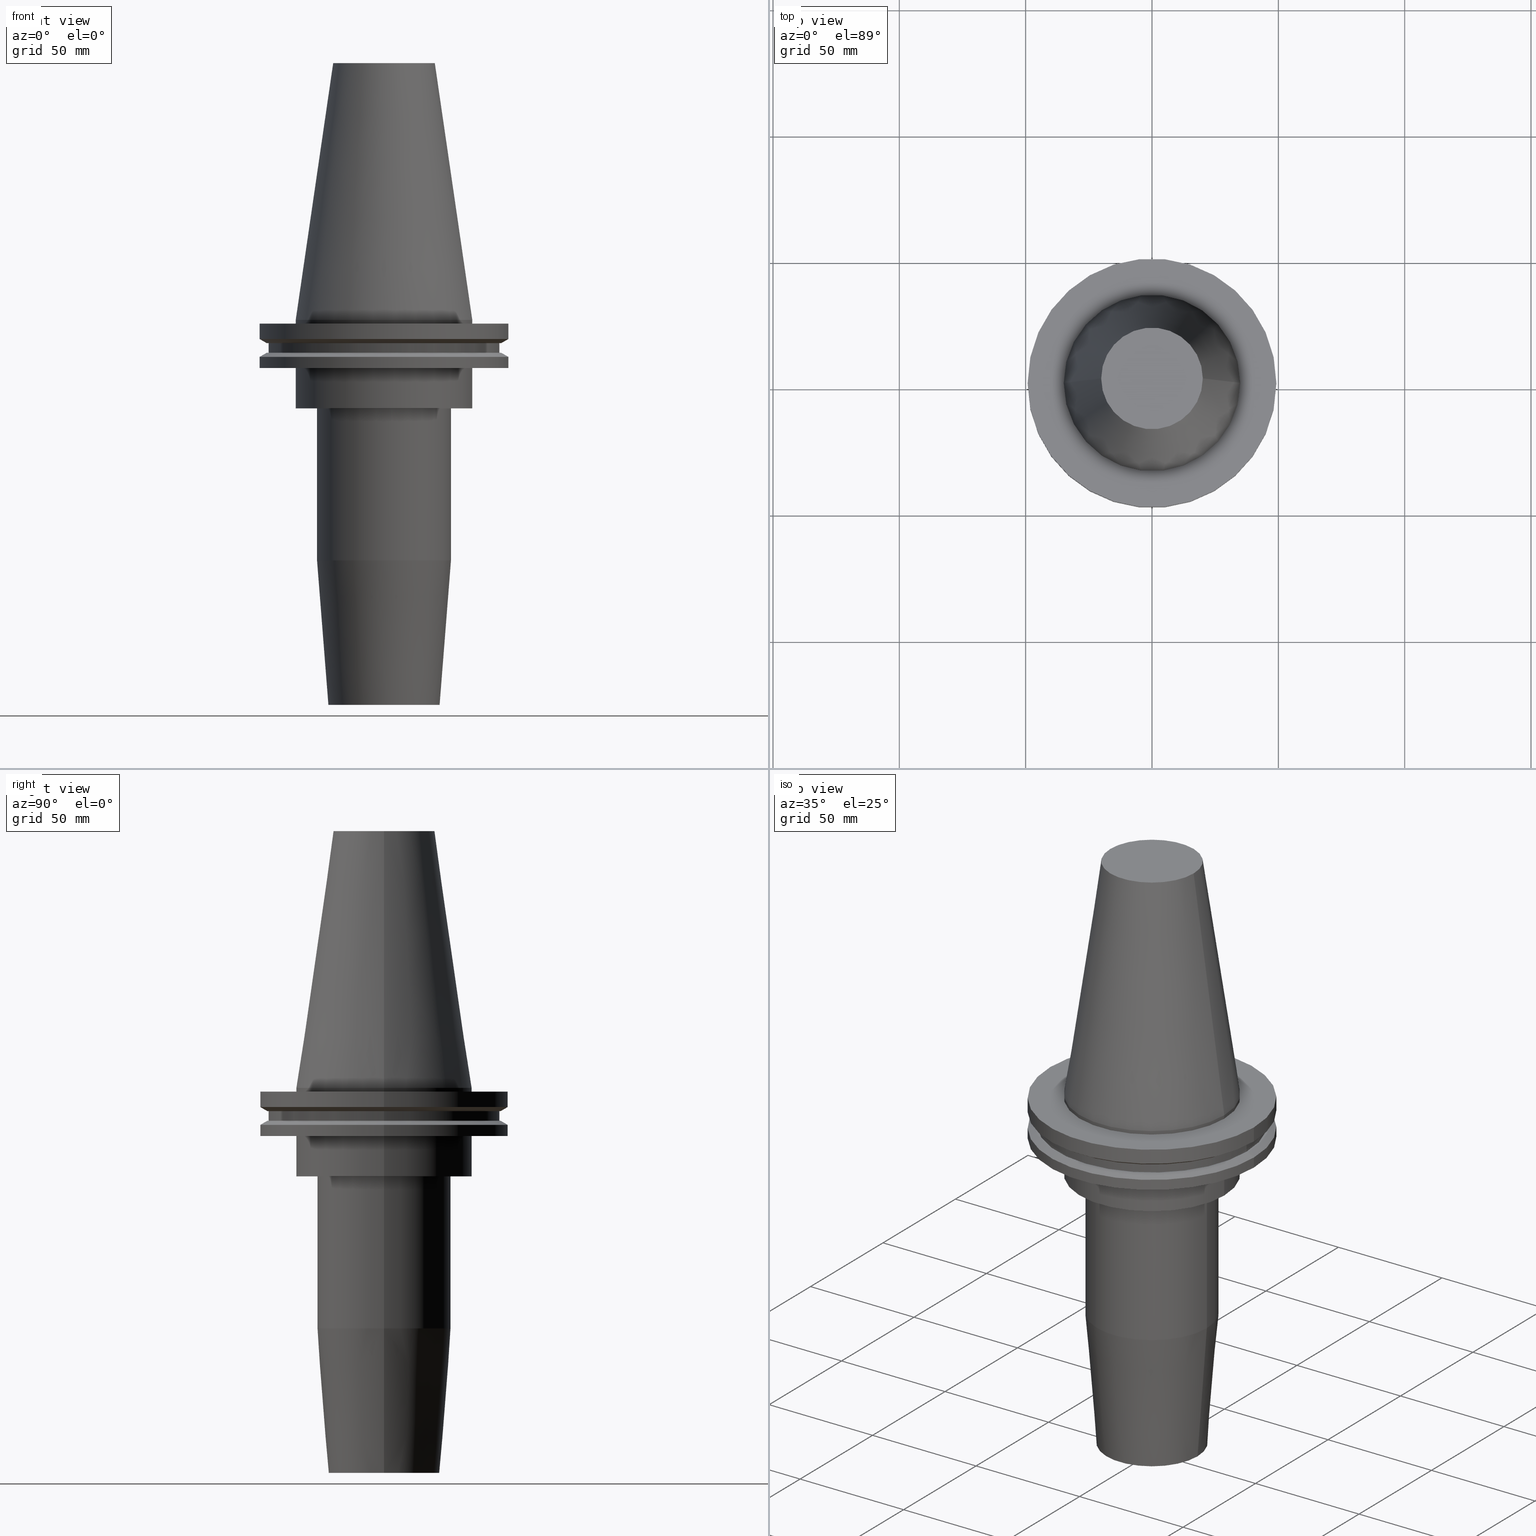
[diagram: canonical four-view strip — front | top / right | iso, engineering-drawing reading convention]
A machine part, canonical four-view strip (front | top / right | iso — engineering-drawing reading convention). The complete STEP part file that produces these views, byte-faithful:
ISO-10303-21;
HEADER;
FILE_DESCRIPTION (( 'STEP AP203' ),
    '1' );
FILE_NAME ('BCV50-SF1_250-6.stp',
    '2022-03-03T17:23:07',
    ( '' ),
    ( '' ),
    'SwSTEP 2.0',
    'SolidWorks 2021',
    '' );
FILE_SCHEMA (( 'CONFIG_CONTROL_DESIGN' ));
ENDSEC;

DATA;
#1 = CARTESIAN_POINT ( 'NONE',  ( 0.000000000000000000, 0.000000000000000000, -14.65761014474876944 ) ) ;
#2 = ADVANCED_FACE ( 'NONE', ( #357 ), #383, .T. ) ;
#3 = ORIENTED_EDGE ( 'NONE', *, *, #600, .T. ) ;
#4 = EDGE_LOOP ( 'NONE', ( #190, #770 ) ) ;
#5 = APPLICATION_PROTOCOL_DEFINITION ( 'international standard', 'config_control_design', 1994, #182 ) ;
#6 = DIRECTION ( 'NONE',  ( 1.000000000000000000, 0.000000000000000000, 0.000000000000000000 ) ) ;
#7 = VERTEX_POINT ( 'NONE', #793 ) ;
#8 = CIRCLE ( 'NONE', #837, 49.21499999999998920 ) ;
#9 = CC_DESIGN_APPROVAL ( #682, ( #635 ) ) ;
#10 = ORIENTED_EDGE ( 'NONE', *, *, #365, .F. ) ;
#11 = ADVANCED_FACE ( 'NONE', ( #680 ), #79, .F. ) ;
#12 = DIRECTION ( 'NONE',  ( -1.000000000000000000, 0.000000000000000000, -0.000000000000000000 ) ) ;
#13 = CARTESIAN_POINT ( 'NONE',  ( 0.000000000000000000, 0.000000000000000000, -35.04999999999999716 ) ) ;
#14 = EDGE_LOOP ( 'NONE', ( #784, #291, #382, #447 ) ) ;
#15 = AXIS2_PLACEMENT_3D ( 'NONE', #203, #52, #330 ) ;
#16 = EDGE_CURVE ( 'NONE', #584, #319, #218, .T. ) ;
#17 = CARTESIAN_POINT ( 'NONE',  ( 26.50000000000000000, 0.000000000000000000, -35.04999999999999716 ) ) ;
#18 = CARTESIAN_POINT ( 'NONE',  ( 0.000000000000000000, 20.10819343178871321, 101.5999999999999943 ) ) ;
#19 = ORIENTED_EDGE ( 'NONE', *, *, #707, .F. ) ;
#20 = DATE_AND_TIME ( #292, #284 ) ;
#21 = CARTESIAN_POINT ( 'NONE',  ( 0.000000000000000000, 0.000000000000000000, -152.4000000000000057 ) ) ;
#22 = ADVANCED_FACE ( 'NONE', ( #156 ), #360, .T. ) ;
#23 = DIRECTION ( 'NONE',  ( -0.000000000000000000, -0.000000000000000000, 1.000000000000000000 ) ) ;
#24 = ORIENTED_EDGE ( 'NONE', *, *, #388, .F. ) ;
#25 = DESIGN_CONTEXT ( 'detailed design', #269, 'design' ) ;
#26 = PRODUCT_DEFINITION_FORMATION_WITH_SPECIFIED_SOURCE ( 'ANY', '', #224, .NOT_KNOWN. ) ;
#27 = SHAPE_DEFINITION_REPRESENTATION ( #614, #720 ) ;
#28 = DIRECTION ( 'NONE',  ( 1.000000000000000000, 0.000000000000000000, 0.000000000000000000 ) ) ;
#29 = EDGE_CURVE ( 'NONE', #667, #341, #209, .T. ) ;
#30 = DIRECTION ( 'NONE',  ( -0.000000000000000000, -0.000000000000000000, 1.000000000000000000 ) ) ;
#31 = ORIENTED_EDGE ( 'NONE', *, *, #220, .T. ) ;
#32 = AXIS2_PLACEMENT_3D ( 'NONE', #167, #434, #374 ) ;
#33 = CIRCLE ( 'NONE', #518, 34.92499999999999005 ) ;
#34 = DATE_AND_TIME ( #688, #839 ) ;
#35 = CARTESIAN_POINT ( 'NONE',  ( 0.000000000000000000, 46.43919780457007818, -9.204999999999998295 ) ) ;
#36 = DIRECTION ( 'NONE',  ( -0.000000000000000000, -0.000000000000000000, 1.000000000000000000 ) ) ;
#37 = EDGE_CURVE ( 'NONE', #456, #507, #342, .T. ) ;
#38 = PERSON_AND_ORGANIZATION ( #185, #534 ) ;
#39 = CARTESIAN_POINT ( 'NONE',  ( 0.000000000000000000, 0.000000000000000000, -35.04999999999999716 ) ) ;
#40 = DIRECTION ( 'NONE',  ( -0.000000000000000000, -0.000000000000000000, 1.000000000000000000 ) ) ;
#41 = ORIENTED_EDGE ( 'NONE', *, *, #565, .F. ) ;
#42 = CONICAL_SURFACE ( 'NONE', #662, 22.00000000000000000, 0.07853981633973751431 ) ;
#43 = DIRECTION ( 'NONE',  ( 0.000000000000000000, -0.000000000000000000, 1.000000000000000000 ) ) ;
#44 = LINE ( 'NONE', #563, #250 ) ;
#45 = APPROVAL_PERSON_ORGANIZATION ( #561, #583, #180 ) ;
#46 = VECTOR ( 'NONE', #470, 1000.000000000000000 ) ;
#47 = DIRECTION ( 'NONE',  ( -0.000000000000000000, -0.000000000000000000, 1.000000000000000000 ) ) ;
#48 = CARTESIAN_POINT ( 'NONE',  ( -45.64500000000000313, 5.589900314708094957E-15, 101.5999999999999943 ) ) ;
#49 = ORIENTED_EDGE ( 'NONE', *, *, #99, .F. ) ;
#50 = CYLINDRICAL_SURFACE ( 'NONE', #812, 15.87500000000002132 ) ;
#51 = ADVANCED_FACE ( 'NONE', ( #675, #141 ), #83, .F. ) ;
#52 = DIRECTION ( 'NONE',  ( 0.000000000000000000, -0.000000000000000000, 1.000000000000000000 ) ) ;
#53 = ORIENTED_EDGE ( 'NONE', *, *, #151, .T. ) ;
#54 = AXIS2_PLACEMENT_3D ( 'NONE', #813, #175, #567 ) ;
#55 = PLANE ( 'NONE',  #192 ) ;
#56 = AXIS2_PLACEMENT_3D ( 'NONE', #673, #742, #343 ) ;
#57 = ORIENTED_EDGE ( 'NONE', *, *, #703, .F. ) ;
#58 = DIRECTION ( 'NONE',  ( 0.8660254037844169472, 1.060575238724880168E-16, -0.5000000000000375255 ) ) ;
#59 = AXIS2_PLACEMENT_3D ( 'NONE', #18, #737, #483 ) ;
#60 = AXIS2_PLACEMENT_3D ( 'NONE', #660, #275, #542 ) ;
#61 = ORIENTED_EDGE ( 'NONE', *, *, #183, .F. ) ;
#62 = ADVANCED_FACE ( 'NONE', ( #666 ), #610, .T. ) ;
#63 = CARTESIAN_POINT ( 'NONE',  ( -34.92499999999999005, 4.277078946022130098E-15, -1.499999999999987566 ) ) ;
#64 = ORIENTED_EDGE ( 'NONE', *, *, #78, .T. ) ;
#65 = FACE_BOUND ( 'NONE', #778, .T. ) ;
#66 = CARTESIAN_POINT ( 'NONE',  ( -49.21499999999998920, 0.000000000000000000, -14.65761014474876944 ) ) ;
#67 = CIRCLE ( 'NONE', #443, 20.10819343178871321 ) ;
#68 = ORIENTED_EDGE ( 'NONE', *, *, #29, .T. ) ;
#69 = LINE ( 'NONE', #608, #718 ) ;
#70 = EDGE_CURVE ( 'NONE', #249, #702, #345, .T. ) ;
#71 = DIRECTION ( 'NONE',  ( 1.000000000000000000, 0.000000000000000000, 0.000000000000000000 ) ) ;
#72 = AXIS2_PLACEMENT_3D ( 'NONE', #706, #560, #488 ) ;
#73 = VECTOR ( 'NONE', #854, 1000.000000000000000 ) ;
#74 = DIRECTION ( 'NONE',  ( 1.000000000000000000, 0.000000000000000000, 0.000000000000000000 ) ) ;
#75 = EDGE_LOOP ( 'NONE', ( #57, #68, #153, #268 ) ) ;
#76 = DIRECTION ( 'NONE',  ( 1.000000000000000000, 0.000000000000000000, 0.000000000000000000 ) ) ;
#77 = FACE_OUTER_BOUND ( 'NONE', #574, .T. ) ;
#78 = EDGE_CURVE ( 'NONE', #554, #286, #797, .T. ) ;
#79 = PLANE ( 'NONE',  #59 ) ;
#80 = ORIENTED_EDGE ( 'NONE', *, *, #301, .T. ) ;
#81 = CARTESIAN_POINT ( 'NONE',  ( 0.000000000000000000, 0.000000000000000000, -13.05499999999999794 ) ) ;
#82 = DIRECTION ( 'NONE',  ( -0.000000000000000000, -0.000000000000000000, 1.000000000000000000 ) ) ;
#83 = PLANE ( 'NONE',  #302 ) ;
#84 = VECTOR ( 'NONE', #127, 1000.000000000000000 ) ;
#85 = CC_DESIGN_PERSON_AND_ORGANIZATION_ASSIGNMENT ( #305, #808, ( #26 ) ) ;
#86 = VERTEX_POINT ( 'NONE', #502 ) ;
#87 = DIRECTION ( 'NONE',  ( -0.8660254037844273833, 1.060575238724893110E-16, 0.5000000000000195399 ) ) ;
#88 = CYLINDRICAL_SURFACE ( 'NONE', #655, 34.92499999999999716 ) ;
#89 = DIRECTION ( 'NONE',  ( -0.000000000000000000, -0.000000000000000000, 1.000000000000000000 ) ) ;
#90 = AXIS2_PLACEMENT_3D ( 'NONE', #184, #772, #439 ) ;
#91 = EDGE_LOOP ( 'NONE', ( #232, #80 ) ) ;
#92 = EDGE_CURVE ( 'NONE', #249, #615, #586, .T. ) ;
#93 = EDGE_CURVE ( 'NONE', #740, #554, #119, .T. ) ;
#94 = PERSON_AND_ORGANIZATION_ROLE ( 'creator' ) ;
#95 = DIRECTION ( 'NONE',  ( -0.000000000000000000, -0.000000000000000000, 1.000000000000000000 ) ) ;
#96 = ORIENTED_EDGE ( 'NONE', *, *, #656, .F. ) ;
#97 = ORIENTED_EDGE ( 'NONE', *, *, #365, .T. ) ;
#98 = PERSON_AND_ORGANIZATION ( #185, #534 ) ;
#99 = EDGE_CURVE ( 'NONE', #319, #264, #516, .T. ) ;
#100 = FACE_OUTER_BOUND ( 'NONE', #261, .T. ) ;
#101 = CARTESIAN_POINT ( 'NONE',  ( 0.000000000000000000, 0.000000000000000000, -13.05499999999999794 ) ) ;
#102 = VERTEX_POINT ( 'NONE', #307 ) ;
#103 = PLANE ( 'NONE',  #533 ) ;
#104 = CYLINDRICAL_SURFACE ( 'NONE', #597, 45.64500000000000313 ) ;
#105 = CLOSED_SHELL ( 'NONE', ( #814, #449, #664, #62, #265, #363, #143, #2, #22, #338, #717, #693, #11, #109, #759, #576, #809, #256, #816, #120, #598, #630, #532, #729, #274, #399, #353, #51, #665, #253 ) ) ;
#106 = AXIS2_PLACEMENT_3D ( 'NONE', #452, #836, #581 ) ;
#107 = CARTESIAN_POINT ( 'NONE',  ( 0.000000000000000000, 0.000000000000000000, -101.4000000000000199 ) ) ;
#108 = CARTESIAN_POINT ( 'NONE',  ( 0.000000000000000000, 0.000000000000000000, -19.04999999999999716 ) ) ;
#109 = ADVANCED_FACE ( 'NONE', ( #828, #701 ), #496, .F. ) ;
#110 = ORIENTED_EDGE ( 'NONE', *, *, #409, .F. ) ;
#111 = FACE_BOUND ( 'NONE', #512, .T. ) ;
#112 = CARTESIAN_POINT ( 'NONE',  ( 49.21499999999998920, 0.000000000000000000, 101.5999999999999943 ) ) ;
#113 = ORIENTED_EDGE ( 'NONE', *, *, #70, .F. ) ;
#114 = AXIS2_PLACEMENT_3D ( 'NONE', #704, #715, #847 ) ;
#115 = DIRECTION ( 'NONE',  ( 1.000000000000000000, 0.000000000000000000, 0.000000000000000000 ) ) ;
#116 = LINE ( 'NONE', #112, #179 ) ;
#117 = EDGE_CURVE ( 'NONE', #672, #507, #116, .T. ) ;
#118 = AXIS2_PLACEMENT_3D ( 'NONE', #188, #234, #442 ) ;
#119 = CIRCLE ( 'NONE', #433, 20.10819343178871321 ) ;
#120 = ADVANCED_FACE ( 'NONE', ( #378 ), #823, .T. ) ;
#121 = FACE_OUTER_BOUND ( 'NONE', #504, .T. ) ;
#122 = CARTESIAN_POINT ( 'NONE',  ( 0.000000000000000000, 0.000000000000000000, -1.499999999999987566 ) ) ;
#123 = EDGE_LOOP ( 'NONE', ( #570, #61 ) ) ;
#124 = CARTESIAN_POINT ( 'NONE',  ( 49.21500000000000341, 0.000000000000000000, -7.602389855251287187 ) ) ;
#125 = ORIENTED_EDGE ( 'NONE', *, *, #16, .F. ) ;
#126 = AXIS2_PLACEMENT_3D ( 'NONE', #695, #95, #247 ) ;
#127 = DIRECTION ( 'NONE',  ( -0.000000000000000000, -0.000000000000000000, 1.000000000000000000 ) ) ;
#128 = SECURITY_CLASSIFICATION ( '', '', #174 ) ;
#129 = CARTESIAN_POINT ( 'NONE',  ( 15.87500000000003197, 0.000000000000000000, -101.4000000000000199 ) ) ;
#130 = ORIENTED_EDGE ( 'NONE', *, *, #622, .T. ) ;
#131 = CARTESIAN_POINT ( 'NONE',  ( 0.000000000000000000, 0.000000000000000000, 0.000000000000000000 ) ) ;
#132 = FACE_OUTER_BOUND ( 'NONE', #676, .T. ) ;
#133 = ORIENTED_EDGE ( 'NONE', *, *, #16, .T. ) ;
#134 = CC_DESIGN_PERSON_AND_ORGANIZATION_ASSIGNMENT ( #416, #358, ( #26 ) ) ;
#135 =( LENGTH_UNIT ( ) NAMED_UNIT ( * ) SI_UNIT ( .MILLI., .METRE. ) );
#136 = DIRECTION ( 'NONE',  ( 1.000000000000000000, 0.000000000000000000, 0.000000000000000000 ) ) ;
#137 = ORIENTED_EDGE ( 'NONE', *, *, #191, .F. ) ;
#138 = CARTESIAN_POINT ( 'NONE',  ( 0.000000000000000000, 0.000000000000000000, 101.5999999999999943 ) ) ;
#139 = AXIS2_PLACEMENT_3D ( 'NONE', #521, #721, #320 ) ;
#140 = APPROVAL_PERSON_ORGANIZATION ( #498, #164, #309 ) ;
#141 = FACE_BOUND ( 'NONE', #254, .T. ) ;
#142 = EDGE_CURVE ( 'NONE', #86, #286, #197, .T. ) ;
#143 = ADVANCED_FACE ( 'NONE', ( #298 ), #104, .T. ) ;
#144 = LINE ( 'NONE', #404, #379 ) ;
#145 = AXIS2_PLACEMENT_3D ( 'NONE', #761, #629, #617 ) ;
#146 = CIRCLE ( 'NONE', #371, 26.50000000000000000 ) ;
#147 = ORIENTED_EDGE ( 'NONE', *, *, #510, .T. ) ;
#148 = ORIENTED_EDGE ( 'NONE', *, *, #546, .F. ) ;
#149 = DIRECTION ( 'NONE',  ( 1.000000000000000000, 0.000000000000000000, 0.000000000000000000 ) ) ;
#150 = FACE_OUTER_BOUND ( 'NONE', #210, .T. ) ;
#151 = EDGE_CURVE ( 'NONE', #335, #456, #44, .T. ) ;
#152 = CARTESIAN_POINT ( 'NONE',  ( 0.000000000000000000, 0.000000000000000000, 101.5999999999999943 ) ) ;
#153 = ORIENTED_EDGE ( 'NONE', *, *, #707, .T. ) ;
#154 = DIRECTION ( 'NONE',  ( -0.000000000000000000, -0.000000000000000000, 1.000000000000000000 ) ) ;
#155 = LINE ( 'NONE', #66, #541 ) ;
#156 = FACE_OUTER_BOUND ( 'NONE', #186, .T. ) ;
#157 = AXIS2_PLACEMENT_3D ( 'NONE', #424, #831, #359 ) ;
#158 = ORIENTED_EDGE ( 'NONE', *, *, #482, .T. ) ;
#159 = APPROVAL_DATE_TIME ( #20, #682 ) ;
#160 = CARTESIAN_POINT ( 'NONE',  ( -26.50000000000000000, 3.245314017740485765E-15, -95.22207868720845170 ) ) ;
#161 = DIRECTION ( 'NONE',  ( 1.000000000000000000, 0.000000000000000000, 0.000000000000000000 ) ) ;
#162 = AXIS2_PLACEMENT_3D ( 'NONE', #1, #466, #349 ) ;
#163 = ORIENTED_EDGE ( 'NONE', *, *, #276, .F. ) ;
#164 = APPROVAL ( #751, 'UNSPECIFIED' ) ;
#165 = DATE_AND_TIME ( #229, #625 ) ;
#166 = DIRECTION ( 'NONE',  ( 1.000000000000000000, 0.000000000000000000, 0.000000000000000000 ) ) ;
#167 = CARTESIAN_POINT ( 'NONE',  ( 0.000000000000000000, 0.000000000000000000, -19.04999999999999716 ) ) ;
#168 = VERTEX_POINT ( 'NONE', #765 ) ;
#169 = DIRECTION ( 'NONE',  ( -0.000000000000000000, -0.000000000000000000, 1.000000000000000000 ) ) ;
#170 = DIRECTION ( 'NONE',  ( -0.000000000000000000, -0.000000000000000000, 1.000000000000000000 ) ) ;
#171 = AXIS2_PLACEMENT_3D ( 'NONE', #39, #169, #364 ) ;
#172 = ORIENTED_EDGE ( 'NONE', *, *, #198, .T. ) ;
#173 = AXIS2_PLACEMENT_3D ( 'NONE', #138, #407, #678 ) ;
#174 = SECURITY_CLASSIFICATION_LEVEL ( 'unclassified' ) ;
#175 = DIRECTION ( 'NONE',  ( -0.000000000000000000, -0.000000000000000000, 1.000000000000000000 ) ) ;
#176 = EDGE_CURVE ( 'NONE', #548, #168, #626, .T. ) ;
#177 = CARTESIAN_POINT ( 'NONE',  ( 0.000000000000000000, 0.000000000000000000, -152.4000000000000057 ) ) ;
#178 = ORIENTED_EDGE ( 'NONE', *, *, #304, .T. ) ;
#179 = VECTOR ( 'NONE', #248, 1000.000000000000000 ) ;
#180 = APPROVAL_ROLE ( '' ) ;
#181 = DIRECTION ( 'NONE',  ( -0.000000000000000000, -0.000000000000000000, 1.000000000000000000 ) ) ;
#182 = APPLICATION_CONTEXT ( 'configuration controlled 3d designs of mechanical parts and assemblies' ) ;
#183 = EDGE_CURVE ( 'NONE', #799, #102, #641, .T. ) ;
#184 = CARTESIAN_POINT ( 'NONE',  ( 0.000000000000000000, 0.000000000000000000, -152.4000000000000057 ) ) ;
#185 = PERSON ( 'UNSPECIFIED', 'UNSPECIFIED', 'UNSPECIFIED', ('UNSPECIFIED'), ('UNSPECIFIED'), ('UNSPECIFIED') ) ;
#186 = EDGE_LOOP ( 'NONE', ( #754, #53, #538, #745 ) ) ;
#187 = CARTESIAN_POINT ( 'NONE',  ( 46.43919780457007818, 5.857130358318725715E-15, -13.05499999999999794 ) ) ;
#188 = CARTESIAN_POINT ( 'NONE',  ( 0.000000000000000000, 0.000000000000000000, -9.204999999999991189 ) ) ;
#189 = EDGE_CURVE ( 'NONE', #264, #319, #273, .T. ) ;
#190 = ORIENTED_EDGE ( 'NONE', *, *, #215, .F. ) ;
#191 = EDGE_CURVE ( 'NONE', #313, #719, #709, .T. ) ;
#192 = AXIS2_PLACEMENT_3D ( 'NONE', #585, #835, #263 ) ;
#193 = VECTOR ( 'NONE', #540, 1000.000000000000000 ) ;
#194 = DIRECTION ( 'NONE',  ( 1.000000000000000000, 0.000000000000000000, 0.000000000000000000 ) ) ;
#195 = FACE_OUTER_BOUND ( 'NONE', #372, .T. ) ;
#196 = ORIENTED_EDGE ( 'NONE', *, *, #99, .T. ) ;
#197 = CIRCLE ( 'NONE', #501, 34.92499999999999005 ) ;
#198 = EDGE_CURVE ( 'NONE', #661, #811, #557, .T. ) ;
#199 = AXIS2_PLACEMENT_3D ( 'NONE', #425, #40, #690 ) ;
#200 = CYLINDRICAL_SURFACE ( 'NONE', #495, 26.50000000000000000 ) ;
#201 = ORIENTED_EDGE ( 'NONE', *, *, #176, .T. ) ;
#202 = CARTESIAN_POINT ( 'NONE',  ( 15.87500000000000711, 0.000000000000000000, -152.4000000000000057 ) ) ;
#203 = CARTESIAN_POINT ( 'NONE',  ( 0.000000000000000000, 15.87500000000003197, -101.4000000000000199 ) ) ;
#204 = ORIENTED_EDGE ( 'NONE', *, *, #78, .F. ) ;
#205 = CIRCLE ( 'NONE', #677, 49.21499999999999631 ) ;
#206 = LINE ( 'NONE', #838, #398 ) ;
#207 = ORIENTED_EDGE ( 'NONE', *, *, #855, .F. ) ;
#208 = CARTESIAN_POINT ( 'NONE',  ( 0.000000000000000000, 45.64500000000000313, -13.05499999999999794 ) ) ;
#209 = CIRCLE ( 'NONE', #817, 34.92499999999999716 ) ;
#210 = EDGE_LOOP ( 'NONE', ( #240, #332, #485, #19 ) ) ;
#211 = MECHANICAL_CONTEXT ( 'NONE', #182, 'mechanical' ) ;
#212 = LINE ( 'NONE', #465, #503 ) ;
#213 = ORIENTED_EDGE ( 'NONE', *, *, #842, .F. ) ;
#214 = EDGE_CURVE ( 'NONE', #811, #661, #402, .T. ) ;
#215 = EDGE_CURVE ( 'NONE', #326, #702, #739, .T. ) ;
#216 = CIRCLE ( 'NONE', #457, 22.00000000000000000 ) ;
#217 = CIRCLE ( 'NONE', #607, 45.64500000000000313 ) ;
#218 = LINE ( 'NONE', #277, #356 ) ;
#219 = EDGE_LOOP ( 'NONE', ( #368, #712, #714, #137 ) ) ;
#220 = EDGE_CURVE ( 'NONE', #584, #698, #628, .T. ) ;
#221 = CARTESIAN_POINT ( 'NONE',  ( 49.21499999999999631, 0.000000000000000000, 101.5999999999999943 ) ) ;
#222 = ORIENTED_EDGE ( 'NONE', *, *, #92, .T. ) ;
#223 = ORIENTED_EDGE ( 'NONE', *, *, #215, .T. ) ;
#224 = PRODUCT ( 'BCV50-SF1_250-6', 'BCV50-SF1_250-6', '', ( #211 ) ) ;
#225 = CYLINDRICAL_SURFACE ( 'NONE', #509, 34.92499999999999716 ) ;
#226 = CARTESIAN_POINT ( 'NONE',  ( -46.43919780457007818, 5.857130358318727293E-15, -9.204999999999991189 ) ) ;
#227 = ORIENTED_EDGE ( 'NONE', *, *, #93, .F. ) ;
#228 = ORIENTED_EDGE ( 'NONE', *, *, #450, .T. ) ;
#229 = CALENDAR_DATE ( 2022, 3, 3 ) ;
#230 = EDGE_LOOP ( 'NONE', ( #489, #602, #475, #493 ) ) ;
#231 = VECTOR ( 'NONE', #259, 1000.000000000000000 ) ;
#232 = ORIENTED_EDGE ( 'NONE', *, *, #758, .T. ) ;
#233 = CARTESIAN_POINT ( 'NONE',  ( -22.00000000000000000, 2.694222958124176809E-15, -152.4000000000000057 ) ) ;
#234 = DIRECTION ( 'NONE',  ( -0.000000000000000000, -0.000000000000000000, 1.000000000000000000 ) ) ;
#235 = AXIS2_PLACEMENT_3D ( 'NONE', #747, #408, #603 ) ;
#236 = ORIENTED_EDGE ( 'NONE', *, *, #758, .F. ) ;
#237 = COORDINATED_UNIVERSAL_TIME_OFFSET ( 6, 0, .BEHIND. ) ;
#238 = DIRECTION ( 'NONE',  ( 1.000000000000000000, 0.000000000000000000, 0.000000000000000000 ) ) ;
#239 = DIRECTION ( 'NONE',  ( 1.000000000000000000, 0.000000000000000000, 0.000000000000000000 ) ) ;
#240 = ORIENTED_EDGE ( 'NONE', *, *, #851, .T. ) ;
#241 = EDGE_CURVE ( 'NONE', #728, #271, #435, .T. ) ;
#242 = CARTESIAN_POINT ( 'NONE',  ( 45.64500000000000313, 0.000000000000000000, -13.05499999999999794 ) ) ;
#243 = DIRECTION ( 'NONE',  ( -0.000000000000000000, -0.000000000000000000, 1.000000000000000000 ) ) ;
#244 = CIRCLE ( 'NONE', #649, 49.21500000000000341 ) ;
#245 = ORIENTED_EDGE ( 'NONE', *, *, #304, .F. ) ;
#246 = APPROVAL_ROLE ( '' ) ;
#247 = DIRECTION ( 'NONE',  ( 1.000000000000000000, 0.000000000000000000, 0.000000000000000000 ) ) ;
#248 = DIRECTION ( 'NONE',  ( -0.000000000000000000, -0.000000000000000000, 1.000000000000000000 ) ) ;
#249 = VERTEX_POINT ( 'NONE', #589 ) ;
#250 = VECTOR ( 'NONE', #36, 1000.000000000000000 ) ;
#251 = DIRECTION ( 'NONE',  ( 1.000000000000000000, 0.000000000000000000, 0.000000000000000000 ) ) ;
#252 = DIRECTION ( 'NONE',  ( -0.000000000000000000, -0.000000000000000000, 1.000000000000000000 ) ) ;
#253 = ADVANCED_FACE ( 'NONE', ( #848 ), #592, .F. ) ;
#254 = EDGE_LOOP ( 'NONE', ( #97, #222 ) ) ;
#255 = CARTESIAN_POINT ( 'NONE',  ( -20.10819343178871321, 0.000000000000000000, 101.5999999999999801 ) ) ;
#256 = ADVANCED_FACE ( 'NONE', ( #722 ), #781, .T. ) ;
#257 = EDGE_LOOP ( 'NONE', ( #204, #227, #631, #308 ) ) ;
#258 = AXIS2_PLACEMENT_3D ( 'NONE', #477, #800, #464 ) ;
#259 = DIRECTION ( 'NONE',  ( -0.000000000000000000, -0.000000000000000000, 1.000000000000000000 ) ) ;
#260 = DIRECTION ( 'NONE',  ( -0.000000000000000000, -0.000000000000000000, 1.000000000000000000 ) ) ;
#261 = EDGE_LOOP ( 'NONE', ( #748, #471, #807, #285 ) ) ;
#262 = LOCAL_TIME ( 11, 23, 7.000000000000000000, #430 ) ;
#263 = DIRECTION ( 'NONE',  ( -1.000000000000000000, 0.000000000000000000, -0.000000000000000000 ) ) ;
#264 = VERTEX_POINT ( 'NONE', #526 ) ;
#265 = ADVANCED_FACE ( 'NONE', ( #195 ), #642, .T. ) ;
#266 = CARTESIAN_POINT ( 'NONE',  ( -15.87500000000003197, 1.944126793646427182E-15, -101.4000000000000199 ) ) ;
#267 = CARTESIAN_POINT ( 'NONE',  ( 0.000000000000000000, 0.000000000000000000, -14.65761014474876944 ) ) ;
#268 = ORIENTED_EDGE ( 'NONE', *, *, #198, .F. ) ;
#269 = APPLICATION_CONTEXT ( 'configuration controlled 3d designs of mechanical parts and assemblies' ) ;
#270 = FACE_OUTER_BOUND ( 'NONE', #834, .T. ) ;
#271 = VERTEX_POINT ( 'NONE', #577 ) ;
#272 = DIRECTION ( 'NONE',  ( 1.000000000000000000, 0.000000000000000000, 0.000000000000000000 ) ) ;
#273 = CIRCLE ( 'NONE', #118, 45.64500000000000313 ) ;
#274 = ADVANCED_FACE ( 'NONE', ( #132 ), #393, .T. ) ;
#275 = DIRECTION ( 'NONE',  ( -0.000000000000000000, -0.000000000000000000, 1.000000000000000000 ) ) ;
#276 = EDGE_CURVE ( 'NONE', #7, #394, #448, .T. ) ;
#277 = CARTESIAN_POINT ( 'NONE',  ( 45.64500000000000313, 0.000000000000000000, 101.5999999999999943 ) ) ;
#278 = CARTESIAN_POINT ( 'NONE',  ( 0.000000000000000000, 0.000000000000000000, -13.05499999999999794 ) ) ;
#279 = ORIENTED_EDGE ( 'NONE', *, *, #773, .T. ) ;
#280 = EDGE_LOOP ( 'NONE', ( #593, #479, #133, #294 ) ) ;
#281 = FACE_OUTER_BOUND ( 'NONE', #564, .T. ) ;
#282 = VECTOR ( 'NONE', #692, 999.9999999999998863 ) ;
#283 = CYLINDRICAL_SURFACE ( 'NONE', #710, 26.50000000000000000 ) ;
#284 = LOCAL_TIME ( 11, 23, 7.000000000000000000, #555 ) ;
#285 = ORIENTED_EDGE ( 'NONE', *, *, #482, .F. ) ;
#286 = VERTEX_POINT ( 'NONE', #852 ) ;
#287 = PLANE ( 'NONE',  #511 ) ;
#288 = DIRECTION ( 'NONE',  ( -0.000000000000000000, -0.000000000000000000, 1.000000000000000000 ) ) ;
#289 = AXIS2_PLACEMENT_3D ( 'NONE', #267, #462, #648 ) ;
#290 = DIRECTION ( 'NONE',  ( 0.000000000000000000, -0.000000000000000000, 1.000000000000000000 ) ) ;
#291 = ORIENTED_EDGE ( 'NONE', *, *, #421, .F. ) ;
#292 = CALENDAR_DATE ( 2022, 3, 3 ) ;
#293 = EDGE_CURVE ( 'NONE', #698, #264, #727, .T. ) ;
#294 = ORIENTED_EDGE ( 'NONE', *, *, #189, .F. ) ;
#295 = EDGE_LOOP ( 'NONE', ( #681, #846 ) ) ;
#296 = PLANE ( 'NONE',  #366 ) ;
#297 = AXIS2_PLACEMENT_3D ( 'NONE', #310, #427, #369 ) ;
#298 = FACE_OUTER_BOUND ( 'NONE', #604, .T. ) ;
#299 = EDGE_LOOP ( 'NONE', ( #440, #618, #245, #96 ) ) ;
#300 = CARTESIAN_POINT ( 'NONE',  ( -34.92499999999999005, 4.277078946022130098E-15, 101.5999999999999943 ) ) ;
#301 = EDGE_CURVE ( 'NONE', #316, #463, #344, .T. ) ;
#302 = AXIS2_PLACEMENT_3D ( 'NONE', #401, #290, #352 ) ;
#303 = CARTESIAN_POINT ( 'NONE',  ( 0.000000000000000000, 0.000000000000000000, -13.05499999999999794 ) ) ;
#304 = EDGE_CURVE ( 'NONE', #286, #86, #33, .T. ) ;
#305 = PERSON_AND_ORGANIZATION ( #185, #534 ) ;
#306 = CARTESIAN_POINT ( 'NONE',  ( 49.21499999999999631, 0.000000000000000000, -1.499999999999987566 ) ) ;
#307 = CARTESIAN_POINT ( 'NONE',  ( 22.00000000000000000, 0.000000000000000000, -152.4000000000000057 ) ) ;
#308 = ORIENTED_EDGE ( 'NONE', *, *, #142, .T. ) ;
#309 = APPROVAL_ROLE ( '' ) ;
#310 = CARTESIAN_POINT ( 'NONE',  ( 0.000000000000000000, 0.000000000000000000, 101.5999999999999943 ) ) ;
#311 = CARTESIAN_POINT ( 'NONE',  ( 0.000000000000000000, 0.000000000000000000, -9.204999999999991189 ) ) ;
#312 = VECTOR ( 'NONE', #843, 1000.000000000000000 ) ;
#313 = VERTEX_POINT ( 'NONE', #321 ) ;
#314 = LINE ( 'NONE', #417, #620 ) ;
#315 = CARTESIAN_POINT ( 'NONE',  ( 0.000000000000000000, 34.92499999999999716, -35.04999999999999716 ) ) ;
#316 = VERTEX_POINT ( 'NONE', #658 ) ;
#317 = DIRECTION ( 'NONE',  ( -0.000000000000000000, -0.000000000000000000, 1.000000000000000000 ) ) ;
#318 = DIRECTION ( 'NONE',  ( -0.000000000000000000, -0.000000000000000000, 1.000000000000000000 ) ) ;
#319 = VERTEX_POINT ( 'NONE', #515 ) ;
#320 = DIRECTION ( 'NONE',  ( -1.000000000000000000, 0.000000000000000000, 0.000000000000000000 ) ) ;
#321 = CARTESIAN_POINT ( 'NONE',  ( -49.21500000000000341, 6.027099222003699404E-15, -7.602389855251287187 ) ) ;
#322 = EDGE_LOOP ( 'NONE', ( #389, #687 ) ) ;
#323 = AXIS2_PLACEMENT_3D ( 'NONE', #768, #438, #238 ) ;
#324 = VECTOR ( 'NONE', #461, 1000.000000000000000 ) ;
#325 = CARTESIAN_POINT ( 'NONE',  ( 15.87500000000002132, 0.000000000000000000, 0.000000000000000000 ) ) ;
#326 = VERTEX_POINT ( 'NONE', #129 ) ;
#327 = EDGE_CURVE ( 'NONE', #411, #744, #146, .T. ) ;
#328 = AXIS2_PLACEMENT_3D ( 'NONE', #743, #288, #71 ) ;
#329 = CARTESIAN_POINT ( 'NONE',  ( 49.21499999999998920, 6.027099222003697037E-15, -14.65761014474876944 ) ) ;
#330 = DIRECTION ( 'NONE',  ( 1.000000000000000000, 0.000000000000000000, 0.000000000000000000 ) ) ;
#331 = UNCERTAINTY_MEASURE_WITH_UNIT (LENGTH_MEASURE( 1.000000000000000082E-05 ), #135, 'distance_accuracy_value', 'NONE');
#332 = ORIENTED_EDGE ( 'NONE', *, *, #703, .T. ) ;
#333 = DIRECTION ( 'NONE',  ( -0.000000000000000000, -0.000000000000000000, 1.000000000000000000 ) ) ;
#334 = DIRECTION ( 'NONE',  ( 1.000000000000000000, 0.000000000000000000, 0.000000000000000000 ) ) ;
#335 = VERTEX_POINT ( 'NONE', #348 ) ;
#336 = CIRCLE ( 'NONE', #54, 46.43919780457007818 ) ;
#337 = CARTESIAN_POINT ( 'NONE',  ( 46.43919780457007818, 0.000000000000000000, -9.204999999999991189 ) ) ;
#338 = ADVANCED_FACE ( 'NONE', ( #150 ), #88, .T. ) ;
#339 = DIRECTION ( 'NONE',  ( 1.000000000000000000, 0.000000000000000000, 0.000000000000000000 ) ) ;
#340 = MANIFOLD_SOLID_BREP ( 'BA', #105 ) ;
#341 = VERTEX_POINT ( 'NONE', #609 ) ;
#342 = CIRCLE ( 'NONE', #460, 49.21499999999998920 ) ;
#343 = DIRECTION ( 'NONE',  ( 1.000000000000000000, 0.000000000000000000, 0.000000000000000000 ) ) ;
#344 = CIRCLE ( 'NONE', #818, 49.21499999999999631 ) ;
#345 = LINE ( 'NONE', #601, #46 ) ;
#346 = ORIENTED_EDGE ( 'NONE', *, *, #724, .F. ) ;
#347 =( NAMED_UNIT ( * ) SI_UNIT ( $, .STERADIAN. ) SOLID_ANGLE_UNIT ( ) );
#348 = CARTESIAN_POINT ( 'NONE',  ( -49.21499999999998920, 6.027099222003697037E-15, -19.04999999999999716 ) ) ;
#349 = DIRECTION ( 'NONE',  ( -1.000000000000000000, 0.000000000000000000, 0.000000000000000000 ) ) ;
#350 = ORIENTED_EDGE ( 'NONE', *, *, #388, .T. ) ;
#351 = CYLINDRICAL_SURFACE ( 'NONE', #173, 49.21499999999998920 ) ;
#352 = DIRECTION ( 'NONE',  ( 1.000000000000000000, 0.000000000000000000, 0.000000000000000000 ) ) ;
#353 = ADVANCED_FACE ( 'NONE', ( #674 ), #845, .T. ) ;
#354 = CARTESIAN_POINT ( 'NONE',  ( 0.000000000000000000, 0.000000000000000000, 101.5999999999999943 ) ) ;
#355 = DIRECTION ( 'NONE',  ( -0.1443082272672999988, 0.000000000000000000, -0.9895327864921755756 ) ) ;
#356 = VECTOR ( 'NONE', #547, 1000.000000000000000 ) ;
#357 = FACE_OUTER_BOUND ( 'NONE', #587, .T. ) ;
#358 = PERSON_AND_ORGANIZATION_ROLE ( 'design_supplier' ) ;
#359 = DIRECTION ( 'NONE',  ( 1.000000000000000000, 0.000000000000000000, 0.000000000000000000 ) ) ;
#360 = CYLINDRICAL_SURFACE ( 'NONE', #653, 49.21499999999998920 ) ;
#361 = EDGE_LOOP ( 'NONE', ( #579, #478 ) ) ;
#362 = APPROVAL_STATUS ( 'not_yet_approved' ) ;
#363 = ADVANCED_FACE ( 'NONE', ( #77 ), #696, .T. ) ;
#364 = DIRECTION ( 'NONE',  ( 1.000000000000000000, 0.000000000000000000, 0.000000000000000000 ) ) ;
#365 = EDGE_CURVE ( 'NONE', #615, #249, #803, .T. ) ;
#366 = AXIS2_PLACEMENT_3D ( 'NONE', #377, #43, #251 ) ;
#367 = DIRECTION ( 'NONE',  ( -0.000000000000000000, -0.000000000000000000, 1.000000000000000000 ) ) ;
#368 = ORIENTED_EDGE ( 'NONE', *, *, #804, .F. ) ;
#369 = DIRECTION ( 'NONE',  ( 1.000000000000000000, 0.000000000000000000, 0.000000000000000000 ) ) ;
#370 = DIRECTION ( 'NONE',  ( 1.000000000000000000, 0.000000000000000000, 0.000000000000000000 ) ) ;
#371 = AXIS2_PLACEMENT_3D ( 'NONE', #13, #670, #339 ) ;
#372 = EDGE_LOOP ( 'NONE', ( #788, #3, #236, #213 ) ) ;
#373 = CARTESIAN_POINT ( 'NONE',  ( -49.21499999999998920, 6.027099222003697037E-15, -14.65761014474876944 ) ) ;
#374 = DIRECTION ( 'NONE',  ( 1.000000000000000000, 0.000000000000000000, 0.000000000000000000 ) ) ;
#375 = ORIENTED_EDGE ( 'NONE', *, *, #432, .F. ) ;
#376 = CALENDAR_DATE ( 2022, 3, 3 ) ;
#377 = CARTESIAN_POINT ( 'NONE',  ( 0.000000000000000000, 49.21499999999998920, -19.04999999999999716 ) ) ;
#378 = FACE_OUTER_BOUND ( 'NONE', #280, .T. ) ;
#379 = VECTOR ( 'NONE', #801, 1000.000000000000000 ) ;
#380 = ORIENTED_EDGE ( 'NONE', *, *, #552, .F. ) ;
#381 = LINE ( 'NONE', #640, #84 ) ;
#382 = ORIENTED_EDGE ( 'NONE', *, *, #395, .T. ) ;
#383 = CONICAL_SURFACE ( 'NONE', #162, 49.21499999999998920, 1.047197551196554333 ) ;
#384 = CARTESIAN_POINT ( 'NONE',  ( -49.21499999999999631, 6.027099222003697826E-15, 101.5999999999999943 ) ) ;
#385 = DIRECTION ( 'NONE',  ( -0.000000000000000000, -0.000000000000000000, 1.000000000000000000 ) ) ;
#386 = ORIENTED_EDGE ( 'NONE', *, *, #500, .F. ) ;
#387 = LINE ( 'NONE', #329, #763 ) ;
#388 = EDGE_CURVE ( 'NONE', #548, #744, #805, .T. ) ;
#389 = ORIENTED_EDGE ( 'NONE', *, *, #327, .T. ) ;
#390 = DIRECTION ( 'NONE',  ( -0.000000000000000000, -0.000000000000000000, 1.000000000000000000 ) ) ;
#391 = ORIENTED_EDGE ( 'NONE', *, *, #578, .F. ) ;
#392 = FACE_OUTER_BOUND ( 'NONE', #414, .T. ) ;
#393 = CYLINDRICAL_SURFACE ( 'NONE', #106, 34.92499999999999005 ) ;
#394 = VERTEX_POINT ( 'NONE', #226 ) ;
#395 = EDGE_CURVE ( 'NONE', #271, #456, #155, .T. ) ;
#396 = FACE_OUTER_BOUND ( 'NONE', #476, .T. ) ;
#397 = ORIENTED_EDGE ( 'NONE', *, *, #327, .F. ) ;
#398 = VECTOR ( 'NONE', #317, 1000.000000000000000 ) ;
#399 = ADVANCED_FACE ( 'NONE', ( #599 ), #283, .T. ) ;
#400 = CARTESIAN_POINT ( 'NONE',  ( 0.000000000000000000, 0.000000000000000000, 101.5999999999999943 ) ) ;
#401 = CARTESIAN_POINT ( 'NONE',  ( 0.000000000000000000, 22.00000000000000000, -152.4000000000000057 ) ) ;
#402 = CIRCLE ( 'NONE', #32, 34.92499999999999716 ) ;
#403 = AXIS2_PLACEMENT_3D ( 'NONE', #522, #260, #455 ) ;
#404 = CARTESIAN_POINT ( 'NONE',  ( 26.50000000000000000, 0.000000000000000000, 0.000000000000000000 ) ) ;
#405 = CARTESIAN_POINT ( 'NONE',  ( 0.000000000000000000, 0.000000000000000000, -14.65761014474876944 ) ) ;
#406 = ORIENTED_EDGE ( 'NONE', *, *, #117, .T. ) ;
#407 = DIRECTION ( 'NONE',  ( -0.000000000000000000, -0.000000000000000000, 1.000000000000000000 ) ) ;
#408 = DIRECTION ( 'NONE',  ( -0.000000000000000000, -0.000000000000000000, 1.000000000000000000 ) ) ;
#409 = EDGE_CURVE ( 'NONE', #740, #86, #212, .T. ) ;
#410 = DIRECTION ( 'NONE',  ( 1.000000000000000000, 0.000000000000000000, 0.000000000000000000 ) ) ;
#411 = VERTEX_POINT ( 'NONE', #17 ) ;
#412 = CARTESIAN_POINT ( 'NONE',  ( 34.92499999999999716, 0.000000000000000000, -19.04999999999999716 ) ) ;
#413 = DIRECTION ( 'NONE',  ( -0.8660254037844169472, 0.000000000000000000, -0.5000000000000375255 ) ) ;
#414 = EDGE_LOOP ( 'NONE', ( #113, #10, #829, #223 ) ) ;
#415 = PRODUCT_RELATED_PRODUCT_CATEGORY ( 'detail', '', ( #224 ) ) ;
#416 = PERSON_AND_ORGANIZATION ( #185, #534 ) ;
#417 = CARTESIAN_POINT ( 'NONE',  ( 22.00000000000000000, 0.000000000000000000, -152.4000000000000057 ) ) ;
#418 = VECTOR ( 'NONE', #769, 999.9999999999998863 ) ;
#419 = ORIENTED_EDGE ( 'NONE', *, *, #656, .T. ) ;
#420 = EDGE_LOOP ( 'NONE', ( #24, #201, #459, #634 ) ) ;
#421 = EDGE_CURVE ( 'NONE', #271, #728, #750, .T. ) ;
#422 = EDGE_CURVE ( 'NONE', #102, #799, #216, .T. ) ;
#423 = COORDINATED_UNIVERSAL_TIME_OFFSET ( 6, 0, .BEHIND. ) ;
#424 = CARTESIAN_POINT ( 'NONE',  ( 0.000000000000000000, 0.000000000000000000, -1.499999999999987566 ) ) ;
#425 = CARTESIAN_POINT ( 'NONE',  ( 0.000000000000000000, 0.000000000000000000, -101.4000000000000199 ) ) ;
#426 = ORIENTED_EDGE ( 'NONE', *, *, #176, .F. ) ;
#427 = DIRECTION ( 'NONE',  ( -0.000000000000000000, -0.000000000000000000, 1.000000000000000000 ) ) ;
#428 = VECTOR ( 'NONE', #572, 1000.000000000000000 ) ;
#429 = DIRECTION ( 'NONE',  ( 1.000000000000000000, 0.000000000000000000, 0.000000000000000000 ) ) ;
#430 = COORDINATED_UNIVERSAL_TIME_OFFSET ( 6, 0, .BEHIND. ) ;
#431 = LINE ( 'NONE', #300, #428 ) ;
#432 = EDGE_CURVE ( 'NONE', #168, #411, #144, .T. ) ;
#433 = AXIS2_PLACEMENT_3D ( 'NONE', #573, #30, #569 ) ;
#434 = DIRECTION ( 'NONE',  ( -0.000000000000000000, -0.000000000000000000, 1.000000000000000000 ) ) ;
#435 = CIRCLE ( 'NONE', #473, 46.43919780457007818 ) ;
#436 = ORIENTED_EDGE ( 'NONE', *, *, #37, .F. ) ;
#437 = DATE_AND_TIME ( #549, #262 ) ;
#438 = DIRECTION ( 'NONE',  ( -0.000000000000000000, -0.000000000000000000, 1.000000000000000000 ) ) ;
#439 = DIRECTION ( 'NONE',  ( 1.000000000000000000, 0.000000000000000000, 0.000000000000000000 ) ) ;
#440 = ORIENTED_EDGE ( 'NONE', *, *, #565, .T. ) ;
#441 = FACE_BOUND ( 'NONE', #611, .T. ) ;
#442 = DIRECTION ( 'NONE',  ( 1.000000000000000000, 0.000000000000000000, 0.000000000000000000 ) ) ;
#443 = AXIS2_PLACEMENT_3D ( 'NONE', #771, #47, #647 ) ;
#444 = CONICAL_SURFACE ( 'NONE', #550, 34.92499999999999005, 0.1448138465474119452 ) ;
#445 = FACE_OUTER_BOUND ( 'NONE', #75, .T. ) ;
#446 = CARTESIAN_POINT ( 'NONE',  ( 0.000000000000000000, 0.000000000000000000, 101.5999999999999943 ) ) ;
#447 = ORIENTED_EDGE ( 'NONE', *, *, #37, .T. ) ;
#448 = CIRCLE ( 'NONE', #403, 46.43919780457007818 ) ;
#449 = ADVANCED_FACE ( 'NONE', ( #100 ), #42, .T. ) ;
#450 = EDGE_CURVE ( 'NONE', #702, #326, #787, .T. ) ;
#451 = DIRECTION ( 'NONE',  ( 0.000000000000000000, 0.000000000000000000, -1.000000000000000000 ) ) ;
#452 = CARTESIAN_POINT ( 'NONE',  ( 0.000000000000000000, 0.000000000000000000, 101.5999999999999943 ) ) ;
#453 = EDGE_LOOP ( 'NONE', ( #849, #734 ) ) ;
#454 = FACE_OUTER_BOUND ( 'NONE', #219, .T. ) ;
#455 = DIRECTION ( 'NONE',  ( 1.000000000000000000, 0.000000000000000000, 0.000000000000000000 ) ) ;
#456 = VERTEX_POINT ( 'NONE', #373 ) ;
#457 = AXIS2_PLACEMENT_3D ( 'NONE', #731, #529, #796 ) ;
#458 = CARTESIAN_POINT ( 'NONE',  ( -45.64500000000000313, 5.589900314708094957E-15, -13.05499999999999794 ) ) ;
#459 = ORIENTED_EDGE ( 'NONE', *, *, #432, .T. ) ;
#460 = AXIS2_PLACEMENT_3D ( 'NONE', #405, #732, #410 ) ;
#461 = DIRECTION ( 'NONE',  ( -0.000000000000000000, -0.000000000000000000, 1.000000000000000000 ) ) ;
#462 = DIRECTION ( 'NONE',  ( 0.000000000000000000, 0.000000000000000000, -1.000000000000000000 ) ) ;
#463 = VERTEX_POINT ( 'NONE', #306 ) ;
#464 = DIRECTION ( 'NONE',  ( 1.000000000000000000, 0.000000000000000000, 0.000000000000000000 ) ) ;
#465 = CARTESIAN_POINT ( 'NONE',  ( -34.92499999999999005, 0.000000000000000000, 0.000000000000000000 ) ) ;
#466 = DIRECTION ( 'NONE',  ( 0.000000000000000000, 0.000000000000000000, -1.000000000000000000 ) ) ;
#467 = AXIS2_PLACEMENT_3D ( 'NONE', #736, #669, #76 ) ;
#468 = CARTESIAN_POINT ( 'NONE',  ( 34.92499999999999005, 0.000000000000000000, -1.499999999999987566 ) ) ;
#469 = CARTESIAN_POINT ( 'NONE',  ( -26.50000000000000000, 3.245314017740485765E-15, 0.000000000000000000 ) ) ;
#470 = DIRECTION ( 'NONE',  ( -0.000000000000000000, -0.000000000000000000, 1.000000000000000000 ) ) ;
#471 = ORIENTED_EDGE ( 'NONE', *, *, #578, .T. ) ;
#472 = CARTESIAN_POINT ( 'NONE',  ( -22.00000000000000000, 2.969768487932331287E-15, -152.4000000000000057 ) ) ;
#473 = AXIS2_PLACEMENT_3D ( 'NONE', #303, #170, #334 ) ;
#474 = EDGE_CURVE ( 'NONE', #672, #335, #8, .T. ) ;
#475 = ORIENTED_EDGE ( 'NONE', *, *, #842, .T. ) ;
#476 = EDGE_LOOP ( 'NONE', ( #520, #544, #228, #537 ) ) ;
#477 = CARTESIAN_POINT ( 'NONE',  ( 0.000000000000000000, 0.000000000000000000, -95.22207868720845170 ) ) ;
#478 = ORIENTED_EDGE ( 'NONE', *, *, #539, .F. ) ;
#479 = ORIENTED_EDGE ( 'NONE', *, *, #790, .T. ) ;
#480 = AXIS2_PLACEMENT_3D ( 'NONE', #616, #181, #499 ) ;
#481 = DIRECTION ( 'NONE',  ( -0.000000000000000000, -0.000000000000000000, 1.000000000000000000 ) ) ;
#482 = EDGE_CURVE ( 'NONE', #102, #168, #314, .T. ) ;
#483 = DIRECTION ( 'NONE',  ( -1.000000000000000000, 0.000000000000000000, -0.000000000000000000 ) ) ;
#484 = EDGE_CURVE ( 'NONE', #744, #411, #691, .T. ) ;
#485 = ORIENTED_EDGE ( 'NONE', *, *, #214, .F. ) ;
#486 = PERSON_AND_ORGANIZATION ( #185, #534 ) ;
#487 = FACE_OUTER_BOUND ( 'NONE', #517, .T. ) ;
#488 = DIRECTION ( 'NONE',  ( 1.000000000000000000, 0.000000000000000000, 0.000000000000000000 ) ) ;
#489 = ORIENTED_EDGE ( 'NONE', *, *, #600, .F. ) ;
#490 = APPLICATION_PROTOCOL_DEFINITION ( 'international standard', 'config_control_design', 1994, #269 ) ;
#491 = DIRECTION ( 'NONE',  ( 0.07845909572783764385, 0.000000000000000000, 0.9969173337331286300 ) ) ;
#492 = DIRECTION ( 'NONE',  ( 0.000000000000000000, -0.000000000000000000, 1.000000000000000000 ) ) ;
#493 = ORIENTED_EDGE ( 'NONE', *, *, #301, .F. ) ;
#494 = DIRECTION ( 'NONE',  ( 0.000000000000000000, -0.000000000000000000, 1.000000000000000000 ) ) ;
#495 = AXIS2_PLACEMENT_3D ( 'NONE', #131, #519, #115 ) ;
#496 = PLANE ( 'NONE',  #767 ) ;
#497 = LOCAL_TIME ( 11, 23, 7.000000000000000000, #423 ) ;
#498 = PERSON_AND_ORGANIZATION ( #185, #534 ) ;
#499 = DIRECTION ( 'NONE',  ( 1.000000000000000000, 0.000000000000000000, 0.000000000000000000 ) ) ;
#500 = EDGE_CURVE ( 'NONE', #654, #86, #431, .T. ) ;
#501 = AXIS2_PLACEMENT_3D ( 'NONE', #633, #23, #694 ) ;
#502 = CARTESIAN_POINT ( 'NONE',  ( -34.92499999999999005, 0.000000000000000000, 0.000000000000000000 ) ) ;
#503 = VECTOR ( 'NONE', #355, 999.9999999999998863 ) ;
#504 = EDGE_LOOP ( 'NONE', ( #279, #350, #397, #375 ) ) ;
#505 = DIRECTION ( 'NONE',  ( -1.000000000000000000, 0.000000000000000000, 0.000000000000000000 ) ) ;
#506 = DIRECTION ( 'NONE',  ( 1.000000000000000000, 0.000000000000000000, 0.000000000000000000 ) ) ;
#507 = VERTEX_POINT ( 'NONE', #820 ) ;
#508 = CARTESIAN_POINT ( 'NONE',  ( -26.50000000000000000, 3.245314017740485765E-15, -35.04999999999999716 ) ) ;
#509 = AXIS2_PLACEMENT_3D ( 'NONE', #354, #154, #272 ) ;
#510 = EDGE_CURVE ( 'NONE', #507, #456, #568, .T. ) ;
#511 = AXIS2_PLACEMENT_3D ( 'NONE', #208, #535, #12 ) ;
#512 = EDGE_LOOP ( 'NONE', ( #528, #172 ) ) ;
#513 = EDGE_CURVE ( 'NONE', #394, #7, #336, .T. ) ;
#514 = DIRECTION ( 'NONE',  ( 1.000000000000000000, 0.000000000000000000, 0.000000000000000000 ) ) ;
#515 = CARTESIAN_POINT ( 'NONE',  ( 45.64500000000000313, 0.000000000000000000, -9.204999999999991189 ) ) ;
#516 = CIRCLE ( 'NONE', #830, 45.64500000000000313 ) ;
#517 = EDGE_LOOP ( 'NONE', ( #163, #650 ) ) ;
#518 = AXIS2_PLACEMENT_3D ( 'NONE', #716, #840, #645 ) ;
#519 = DIRECTION ( 'NONE',  ( -0.000000000000000000, -0.000000000000000000, 1.000000000000000000 ) ) ;
#520 = ORIENTED_EDGE ( 'NONE', *, *, #92, .F. ) ;
#521 = CARTESIAN_POINT ( 'NONE',  ( 0.000000000000000000, 0.000000000000000000, 0.000000000000000000 ) ) ;
#522 = CARTESIAN_POINT ( 'NONE',  ( 0.000000000000000000, 0.000000000000000000, -9.204999999999991189 ) ) ;
#523 = ORIENTED_EDGE ( 'NONE', *, *, #220, .F. ) ;
#524 = CIRCLE ( 'NONE', #157, 34.92499999999999005 ) ;
#525 = DIRECTION ( 'NONE',  ( 1.000000000000000000, 0.000000000000000000, 0.000000000000000000 ) ) ;
#526 = CARTESIAN_POINT ( 'NONE',  ( -45.64500000000000313, 5.589900314708094957E-15, -9.204999999999991189 ) ) ;
#527 = ORIENTED_EDGE ( 'NONE', *, *, #189, .T. ) ;
#528 = ORIENTED_EDGE ( 'NONE', *, *, #214, .T. ) ;
#529 = DIRECTION ( 'NONE',  ( -0.000000000000000000, -0.000000000000000000, 1.000000000000000000 ) ) ;
#530 = ORIENTED_EDGE ( 'NONE', *, *, #790, .F. ) ;
#531 = ORIENTED_EDGE ( 'NONE', *, *, #151, .F. ) ;
#532 = ADVANCED_FACE ( 'NONE', ( #760 ), #827, .T. ) ;
#533 = AXIS2_PLACEMENT_3D ( 'NONE', #35, #494, #166 ) ;
#534 = ORGANIZATION ( 'UNSPECIFIED', 'UNSPECIFIED', '' ) ;
#535 = DIRECTION ( 'NONE',  ( 0.000000000000000000, 0.000000000000000000, -1.000000000000000000 ) ) ;
#536 = CARTESIAN_POINT ( 'NONE',  ( 0.000000000000000000, 0.000000000000000000, 0.000000000000000000 ) ) ;
#537 = ORIENTED_EDGE ( 'NONE', *, *, #639, .F. ) ;
#538 = ORIENTED_EDGE ( 'NONE', *, *, #510, .F. ) ;
#539 = EDGE_CURVE ( 'NONE', #335, #672, #594, .T. ) ;
#540 = DIRECTION ( 'NONE',  ( 0.8660254037844273833, 0.000000000000000000, 0.5000000000000195399 ) ) ;
#541 = VECTOR ( 'NONE', #413, 1000.000000000000114 ) ;
#542 = DIRECTION ( 'NONE',  ( 1.000000000000000000, 0.000000000000000000, 0.000000000000000000 ) ) ;
#543 = CARTESIAN_POINT ( 'NONE',  ( 0.000000000000000000, 0.000000000000000000, 101.5999999999999943 ) ) ;
#544 = ORIENTED_EDGE ( 'NONE', *, *, #70, .T. ) ;
#545 = DATE_AND_TIME ( #376, #497 ) ;
#546 = EDGE_CURVE ( 'NONE', #719, #313, #244, .T. ) ;
#547 = DIRECTION ( 'NONE',  ( -0.000000000000000000, -0.000000000000000000, 1.000000000000000000 ) ) ;
#548 = VERTEX_POINT ( 'NONE', #160 ) ;
#549 = CALENDAR_DATE ( 2022, 3, 3 ) ;
#550 = AXIS2_PLACEMENT_3D ( 'NONE', #850, #451, #505 ) ;
#551 = DIRECTION ( 'NONE',  ( 1.000000000000000000, 0.000000000000000000, 0.000000000000000000 ) ) ;
#552 = EDGE_CURVE ( 'NONE', #654, #791, #637, .T. ) ;
#553 = DIRECTION ( 'NONE',  ( 1.000000000000000000, 0.000000000000000000, 0.000000000000000000 ) ) ;
#554 = VERTEX_POINT ( 'NONE', #700 ) ;
#555 = COORDINATED_UNIVERSAL_TIME_OFFSET ( 6, 0, .BEHIND. ) ;
#556 = CC_DESIGN_SECURITY_CLASSIFICATION ( #128, ( #26 ) ) ;
#557 = CIRCLE ( 'NONE', #780, 34.92499999999999716 ) ;
#558 = DIRECTION ( 'NONE',  ( -0.000000000000000000, -0.000000000000000000, 1.000000000000000000 ) ) ;
#559 = AXIS2_PLACEMENT_3D ( 'NONE', #101, #367, #623 ) ;
#560 = DIRECTION ( 'NONE',  ( -0.000000000000000000, -0.000000000000000000, 1.000000000000000000 ) ) ;
#561 = PERSON_AND_ORGANIZATION ( #185, #534 ) ;
#562 = CARTESIAN_POINT ( 'NONE',  ( 0.000000000000000000, 0.000000000000000000, -7.602389855251287187 ) ) ;
#563 = CARTESIAN_POINT ( 'NONE',  ( -49.21499999999998920, 6.027099222003697037E-15, 101.5999999999999943 ) ) ;
#564 = EDGE_LOOP ( 'NONE', ( #531, #810, #406, #436 ) ) ;
#565 = EDGE_CURVE ( 'NONE', #791, #654, #524, .T. ) ;
#566 = PERSON_AND_ORGANIZATION ( #185, #534 ) ;
#567 = DIRECTION ( 'NONE',  ( 1.000000000000000000, 0.000000000000000000, 0.000000000000000000 ) ) ;
#568 = CIRCLE ( 'NONE', #323, 49.21499999999998920 ) ;
#569 = DIRECTION ( 'NONE',  ( 1.000000000000000000, 0.000000000000000000, 0.000000000000000000 ) ) ;
#570 = ORIENTED_EDGE ( 'NONE', *, *, #422, .F. ) ;
#571 = CC_DESIGN_PERSON_AND_ORGANIZATION_ASSIGNMENT ( #38, #94, ( #635 ) ) ;
#572 = DIRECTION ( 'NONE',  ( -0.000000000000000000, -0.000000000000000000, 1.000000000000000000 ) ) ;
#573 = CARTESIAN_POINT ( 'NONE',  ( 0.000000000000000000, 0.000000000000000000, 101.5999999999999801 ) ) ;
#574 = EDGE_LOOP ( 'NONE', ( #749, #853, #148, #207 ) ) ;
#575 = FACE_OUTER_BOUND ( 'NONE', #91, .T. ) ;
#576 = ADVANCED_FACE ( 'NONE', ( #822, #111 ), #296, .F. ) ;
#577 = CARTESIAN_POINT ( 'NONE',  ( -46.43919780457007818, 0.000000000000000000, -13.05499999999999794 ) ) ;
#578 = EDGE_CURVE ( 'NONE', #799, #548, #685, .T. ) ;
#579 = ORIENTED_EDGE ( 'NONE', *, *, #474, .F. ) ;
#580 = FACE_OUTER_BOUND ( 'NONE', #257, .T. ) ;
#581 = DIRECTION ( 'NONE',  ( 1.000000000000000000, 0.000000000000000000, 0.000000000000000000 ) ) ;
#582 = AXIS2_PLACEMENT_3D ( 'NONE', #278, #481, #136 ) ;
#583 = APPROVAL ( #362, 'UNSPECIFIED' ) ;
#584 = VERTEX_POINT ( 'NONE', #242 ) ;
#585 = CARTESIAN_POINT ( 'NONE',  ( 0.000000000000000000, 49.21499999999999631, -1.499999999999992895 ) ) ;
#586 = CIRCLE ( 'NONE', #90, 15.87500000000000711 ) ;
#587 = EDGE_LOOP ( 'NONE', ( #659, #130, #147, #596 ) ) ;
#588 = LINE ( 'NONE', #325, #312 ) ;
#589 = CARTESIAN_POINT ( 'NONE',  ( -15.87500000000000711, 1.944126793646425210E-15, -152.4000000000000057 ) ) ;
#590 = ORIENTED_EDGE ( 'NONE', *, *, #421, .T. ) ;
#591 = FACE_OUTER_BOUND ( 'NONE', #782, .T. ) ;
#592 = PLANE ( 'NONE',  #15 ) ;
#593 = ORIENTED_EDGE ( 'NONE', *, *, #293, .F. ) ;
#594 = CIRCLE ( 'NONE', #126, 49.21499999999998920 ) ;
#595 =( NAMED_UNIT ( * ) PLANE_ANGLE_UNIT ( ) SI_UNIT ( $, .RADIAN. ) );
#596 = ORIENTED_EDGE ( 'NONE', *, *, #395, .F. ) ;
#597 = AXIS2_PLACEMENT_3D ( 'NONE', #638, #243, #370 ) ;
#598 = ADVANCED_FACE ( 'NONE', ( #487, #756 ), #103, .F. ) ;
#599 = FACE_OUTER_BOUND ( 'NONE', #420, .T. ) ;
#600 = EDGE_CURVE ( 'NONE', #313, #316, #785, .T. ) ;
#601 = CARTESIAN_POINT ( 'NONE',  ( -15.87500000000002132, 1.944126793646425999E-15, 0.000000000000000000 ) ) ;
#602 = ORIENTED_EDGE ( 'NONE', *, *, #191, .T. ) ;
#603 = DIRECTION ( 'NONE',  ( 1.000000000000000000, 0.000000000000000000, 0.000000000000000000 ) ) ;
#604 = EDGE_LOOP ( 'NONE', ( #31, #774, #49, #125 ) ) ;
#605 = ORIENTED_EDGE ( 'NONE', *, *, #142, .F. ) ;
#606 = CONICAL_SURFACE ( 'NONE', #114, 46.43919780457007818, 1.047197551196575205 ) ;
#607 = AXIS2_PLACEMENT_3D ( 'NONE', #81, #730, #149 ) ;
#608 = CARTESIAN_POINT ( 'NONE',  ( -46.43919780457007818, 5.687161494633754392E-15, -9.204999999999991189 ) ) ;
#609 = CARTESIAN_POINT ( 'NONE',  ( 34.92499999999999716, 0.000000000000000000, -35.04999999999999716 ) ) ;
#610 = CYLINDRICAL_SURFACE ( 'NONE', #844, 34.92499999999999005 ) ;
#611 = EDGE_LOOP ( 'NONE', ( #41, #380 ) ) ;
#612 = CARTESIAN_POINT ( 'NONE',  ( 0.000000000000000000, 0.000000000000000000, 0.000000000000000000 ) ) ;
#613 = CARTESIAN_POINT ( 'NONE',  ( 0.000000000000000000, 0.000000000000000000, -35.04999999999999716 ) ) ;
#614 = PRODUCT_DEFINITION_SHAPE ( 'NONE', 'NONE',  #635 ) ;
#615 = VERTEX_POINT ( 'NONE', #202 ) ;
#616 = CARTESIAN_POINT ( 'NONE',  ( 0.000000000000000000, 0.000000000000000000, -1.499999999999987566 ) ) ;
#617 = DIRECTION ( 'NONE',  ( 1.000000000000000000, 0.000000000000000000, 0.000000000000000000 ) ) ;
#618 = ORIENTED_EDGE ( 'NONE', *, *, #500, .T. ) ;
#619 = DATE_TIME_ROLE ( 'classification_date' ) ;
#620 = VECTOR ( 'NONE', #491, 999.9999999999998863 ) ;
#621 = CC_DESIGN_APPROVAL ( #164, ( #26 ) ) ;
#622 = EDGE_CURVE ( 'NONE', #728, #507, #387, .T. ) ;
#623 = DIRECTION ( 'NONE',  ( 1.000000000000000000, 0.000000000000000000, 0.000000000000000000 ) ) ;
#624 = ORIENTED_EDGE ( 'NONE', *, *, #552, .T. ) ;
#625 = LOCAL_TIME ( 11, 23, 7.000000000000000000, #237 ) ;
#626 = CIRCLE ( 'NONE', #723, 26.50000000000000000 ) ;
#627 = DIRECTION ( 'NONE',  ( 1.000000000000000000, 0.000000000000000000, 0.000000000000000000 ) ) ;
#628 = CIRCLE ( 'NONE', #559, 45.64500000000000313 ) ;
#629 = DIRECTION ( 'NONE',  ( -0.000000000000000000, -0.000000000000000000, 1.000000000000000000 ) ) ;
#630 = ADVANCED_FACE ( 'NONE', ( #454 ), #606, .T. ) ;
#631 = ORIENTED_EDGE ( 'NONE', *, *, #409, .T. ) ;
#632 = CARTESIAN_POINT ( 'NONE',  ( 0.000000000000000000, 0.000000000000000000, -19.04999999999999716 ) ) ;
#633 = CARTESIAN_POINT ( 'NONE',  ( 0.000000000000000000, 0.000000000000000000, 0.000000000000000000 ) ) ;
#634 = ORIENTED_EDGE ( 'NONE', *, *, #484, .F. ) ;
#635 = PRODUCT_DEFINITION ( 'UNKNOWN', '', #26, #25 ) ;
#636 = DIRECTION ( 'NONE',  ( -0.000000000000000000, -0.000000000000000000, 1.000000000000000000 ) ) ;
#637 = CIRCLE ( 'NONE', #480, 34.92499999999999005 ) ;
#638 = CARTESIAN_POINT ( 'NONE',  ( 0.000000000000000000, 0.000000000000000000, 101.5999999999999943 ) ) ;
#639 = EDGE_CURVE ( 'NONE', #615, #326, #588, .T. ) ;
#640 = CARTESIAN_POINT ( 'NONE',  ( 34.92499999999999716, 0.000000000000000000, 101.5999999999999943 ) ) ;
#641 = CIRCLE ( 'NONE', #683, 22.00000000000000000 ) ;
#642 = CYLINDRICAL_SURFACE ( 'NONE', #668, 49.21499999999999631 ) ;
#643 = CARTESIAN_POINT ( 'NONE',  ( 34.92499999999999005, 0.000000000000000000, 101.5999999999999943 ) ) ;
#644 = CC_DESIGN_PERSON_AND_ORGANIZATION_ASSIGNMENT ( #566, #755, ( #128 ) ) ;
#645 = DIRECTION ( 'NONE',  ( 1.000000000000000000, 0.000000000000000000, 0.000000000000000000 ) ) ;
#646 = EDGE_LOOP ( 'NONE', ( #196, #527 ) ) ;
#647 = DIRECTION ( 'NONE',  ( 1.000000000000000000, 0.000000000000000000, 0.000000000000000000 ) ) ;
#648 = DIRECTION ( 'NONE',  ( -1.000000000000000000, 0.000000000000000000, 0.000000000000000000 ) ) ;
#649 = AXIS2_PLACEMENT_3D ( 'NONE', #562, #689, #551 ) ;
#650 = ORIENTED_EDGE ( 'NONE', *, *, #513, .F. ) ;
#651 = CARTESIAN_POINT ( 'NONE',  ( 0.000000000000000000, 0.000000000000000000, 0.000000000000000000 ) ) ;
#652 = DIRECTION ( 'NONE',  ( -0.000000000000000000, -0.000000000000000000, 1.000000000000000000 ) ) ;
#653 = AXIS2_PLACEMENT_3D ( 'NONE', #152, #89, #753 ) ;
#654 = VERTEX_POINT ( 'NONE', #63 ) ;
#655 = AXIS2_PLACEMENT_3D ( 'NONE', #400, #82, #6 ) ;
#656 = EDGE_CURVE ( 'NONE', #791, #286, #708, .T. ) ;
#657 = CARTESIAN_POINT ( 'NONE',  ( -34.92499999999999716, 4.277078946022130887E-15, -35.04999999999999716 ) ) ;
#658 = CARTESIAN_POINT ( 'NONE',  ( -49.21499999999999631, 6.027099222003697826E-15, -1.499999999999987566 ) ) ;
#659 = ORIENTED_EDGE ( 'NONE', *, *, #241, .F. ) ;
#660 = CARTESIAN_POINT ( 'NONE',  ( 0.000000000000000000, 0.000000000000000000, -152.4000000000000057 ) ) ;
#661 = VERTEX_POINT ( 'NONE', #779 ) ;
#662 = AXIS2_PLACEMENT_3D ( 'NONE', #21, #764, #28 ) ;
#663 = APPROVAL_PERSON_ORGANIZATION ( #486, #682, #246 ) ;
#664 = ADVANCED_FACE ( 'NONE', ( #121 ), #200, .T. ) ;
#665 = ADVANCED_FACE ( 'NONE', ( #392 ), #50, .F. ) ;
#666 = FACE_OUTER_BOUND ( 'NONE', #299, .T. ) ;
#667 = VERTEX_POINT ( 'NONE', #657 ) ;
#668 = AXIS2_PLACEMENT_3D ( 'NONE', #446, #652, #711 ) ;
#669 = DIRECTION ( 'NONE',  ( 0.000000000000000000, 0.000000000000000000, 1.000000000000000000 ) ) ;
#670 = DIRECTION ( 'NONE',  ( -0.000000000000000000, -0.000000000000000000, 1.000000000000000000 ) ) ;
#671 = CARTESIAN_POINT ( 'NONE',  ( 34.92499999999999005, 4.277078946022130098E-15, 0.000000000000000000 ) ) ;
#672 = VERTEX_POINT ( 'NONE', #713 ) ;
#673 = CARTESIAN_POINT ( 'NONE',  ( 0.000000000000000000, 0.000000000000000000, -35.04999999999999716 ) ) ;
#674 = FACE_OUTER_BOUND ( 'NONE', #725, .T. ) ;
#675 = FACE_OUTER_BOUND ( 'NONE', #123, .T. ) ;
#676 = EDGE_LOOP ( 'NONE', ( #386, #624, #419, #605 ) ) ;
#677 = AXIS2_PLACEMENT_3D ( 'NONE', #783, #776, #194 ) ;
#678 = DIRECTION ( 'NONE',  ( 1.000000000000000000, 0.000000000000000000, 0.000000000000000000 ) ) ;
#679 = DIRECTION ( 'NONE',  ( 1.000000000000000000, 0.000000000000000000, 0.000000000000000000 ) ) ;
#680 = FACE_OUTER_BOUND ( 'NONE', #295, .T. ) ;
#681 = ORIENTED_EDGE ( 'NONE', *, *, #93, .T. ) ;
#682 = APPROVAL ( #824, 'UNSPECIFIED' ) ;
#683 = AXIS2_PLACEMENT_3D ( 'NONE', #177, #815, #821 ) ;
#684 = PERSON_AND_ORGANIZATION_ROLE ( 'design_owner' ) ;
#685 = LINE ( 'NONE', #233, #282 ) ;
#686 = ORIENTED_EDGE ( 'NONE', *, *, #241, .T. ) ;
#687 = ORIENTED_EDGE ( 'NONE', *, *, #484, .T. ) ;
#688 = CALENDAR_DATE ( 2022, 3, 3 ) ;
#689 = DIRECTION ( 'NONE',  ( -0.000000000000000000, -0.000000000000000000, 1.000000000000000000 ) ) ;
#690 = DIRECTION ( 'NONE',  ( 1.000000000000000000, 0.000000000000000000, 0.000000000000000000 ) ) ;
#691 = CIRCLE ( 'NONE', #171, 26.50000000000000000 ) ;
#692 = DIRECTION ( 'NONE',  ( -0.07845909572783764385, 9.608468044709212160E-18, 0.9969173337331286300 ) ) ;
#693 = ADVANCED_FACE ( 'NONE', ( #580 ), #825, .T. ) ;
#694 = DIRECTION ( 'NONE',  ( 1.000000000000000000, 0.000000000000000000, 0.000000000000000000 ) ) ;
#695 = CARTESIAN_POINT ( 'NONE',  ( 0.000000000000000000, 0.000000000000000000, -19.04999999999999716 ) ) ;
#696 = CONICAL_SURFACE ( 'NONE', #235, 46.43919780457007818, 1.047197551196575205 ) ;
#697 = CARTESIAN_POINT ( 'NONE',  ( 0.000000000000000000, 0.000000000000000000, -95.22207868720845170 ) ) ;
#698 = VERTEX_POINT ( 'NONE', #458 ) ;
#699 = APPROVAL_DATE_TIME ( #437, #583 ) ;
#700 = CARTESIAN_POINT ( 'NONE',  ( 20.10819343178871321, 3.369811209154858606E-15, 101.5999999999999801 ) ) ;
#701 = FACE_OUTER_BOUND ( 'NONE', #453, .T. ) ;
#702 = VERTEX_POINT ( 'NONE', #266 ) ;
#703 = EDGE_CURVE ( 'NONE', #667, #661, #206, .T. ) ;
#704 = CARTESIAN_POINT ( 'NONE',  ( 0.000000000000000000, 0.000000000000000000, -9.204999999999991189 ) ) ;
#705 = AXIS2_PLACEMENT_3D ( 'NONE', #107, #558, #627 ) ;
#706 = CARTESIAN_POINT ( 'NONE',  ( 0.000000000000000000, 0.000000000000000000, -7.602389855251287187 ) ) ;
#707 = EDGE_CURVE ( 'NONE', #341, #811, #381, .T. ) ;
#708 = LINE ( 'NONE', #643, #231 ) ;
#709 = CIRCLE ( 'NONE', #72, 49.21500000000000341 ) ;
#710 = AXIS2_PLACEMENT_3D ( 'NONE', #536, #792, #679 ) ;
#711 = DIRECTION ( 'NONE',  ( 1.000000000000000000, 0.000000000000000000, 0.000000000000000000 ) ) ;
#712 = ORIENTED_EDGE ( 'NONE', *, *, #513, .T. ) ;
#713 = CARTESIAN_POINT ( 'NONE',  ( 49.21499999999998920, 0.000000000000000000, -19.04999999999999716 ) ) ;
#714 = ORIENTED_EDGE ( 'NONE', *, *, #855, .T. ) ;
#715 = DIRECTION ( 'NONE',  ( -0.000000000000000000, -0.000000000000000000, 1.000000000000000000 ) ) ;
#716 = CARTESIAN_POINT ( 'NONE',  ( 0.000000000000000000, 0.000000000000000000, 0.000000000000000000 ) ) ;
#717 = ADVANCED_FACE ( 'NONE', ( #591 ), #444, .T. ) ;
#718 = VECTOR ( 'NONE', #87, 1000.000000000000000 ) ;
#719 = VERTEX_POINT ( 'NONE', #124 ) ;
#720 = ADVANCED_BREP_SHAPE_REPRESENTATION ( 'BCV50-SF1_250-6', ( #340, #467 ), #826 ) ;
#721 = DIRECTION ( 'NONE',  ( 0.000000000000000000, 0.000000000000000000, -1.000000000000000000 ) ) ;
#722 = FACE_OUTER_BOUND ( 'NONE', #14, .T. ) ;
#723 = AXIS2_PLACEMENT_3D ( 'NONE', #697, #252, #506 ) ;
#724 = EDGE_CURVE ( 'NONE', #554, #740, #67, .T. ) ;
#725 = EDGE_LOOP ( 'NONE', ( #391, #841, #158, #426 ) ) ;
#726 = LINE ( 'NONE', #337, #193 ) ;
#727 = LINE ( 'NONE', #48, #741 ) ;
#728 = VERTEX_POINT ( 'NONE', #187 ) ;
#729 = ADVANCED_FACE ( 'NONE', ( #441, #575 ), #55, .F. ) ;
#730 = DIRECTION ( 'NONE',  ( -0.000000000000000000, -0.000000000000000000, 1.000000000000000000 ) ) ;
#731 = CARTESIAN_POINT ( 'NONE',  ( 0.000000000000000000, 0.000000000000000000, -152.4000000000000057 ) ) ;
#732 = DIRECTION ( 'NONE',  ( -0.000000000000000000, -0.000000000000000000, 1.000000000000000000 ) ) ;
#733 = CIRCLE ( 'NONE', #56, 34.92499999999999716 ) ;
#734 = ORIENTED_EDGE ( 'NONE', *, *, #29, .F. ) ;
#735 = CC_DESIGN_PERSON_AND_ORGANIZATION_ASSIGNMENT ( #98, #684, ( #224 ) ) ;
#736 = CARTESIAN_POINT ( 'NONE',  ( 0.000000000000000000, 0.000000000000000000, 0.000000000000000000 ) ) ;
#737 = DIRECTION ( 'NONE',  ( 0.000000000000000000, 0.000000000000000000, -1.000000000000000000 ) ) ;
#738 = CC_DESIGN_APPROVAL ( #583, ( #128 ) ) ;
#739 = CIRCLE ( 'NONE', #199, 15.87500000000003197 ) ;
#740 = VERTEX_POINT ( 'NONE', #255 ) ;
#741 = VECTOR ( 'NONE', #318, 1000.000000000000000 ) ;
#742 = DIRECTION ( 'NONE',  ( -0.000000000000000000, -0.000000000000000000, 1.000000000000000000 ) ) ;
#743 = CARTESIAN_POINT ( 'NONE',  ( 0.000000000000000000, 0.000000000000000000, -152.4000000000000057 ) ) ;
#744 = VERTEX_POINT ( 'NONE', #508 ) ;
#745 = ORIENTED_EDGE ( 'NONE', *, *, #117, .F. ) ;
#746 = CYLINDRICAL_SURFACE ( 'NONE', #777, 15.87500000000002132 ) ;
#747 = CARTESIAN_POINT ( 'NONE',  ( 0.000000000000000000, 0.000000000000000000, -9.204999999999991189 ) ) ;
#748 = ORIENTED_EDGE ( 'NONE', *, *, #422, .T. ) ;
#749 = ORIENTED_EDGE ( 'NONE', *, *, #276, .T. ) ;
#750 = CIRCLE ( 'NONE', #582, 46.43919780457007818 ) ;
#751 = APPROVAL_STATUS ( 'not_yet_approved' ) ;
#752 = DIRECTION ( 'NONE',  ( 1.000000000000000000, 0.000000000000000000, 0.000000000000000000 ) ) ;
#753 = DIRECTION ( 'NONE',  ( 1.000000000000000000, 0.000000000000000000, 0.000000000000000000 ) ) ;
#754 = ORIENTED_EDGE ( 'NONE', *, *, #474, .T. ) ;
#755 = PERSON_AND_ORGANIZATION_ROLE ( 'classification_officer' ) ;
#756 = FACE_BOUND ( 'NONE', #646, .T. ) ;
#757 = DIRECTION ( 'NONE',  ( -0.000000000000000000, -0.000000000000000000, 1.000000000000000000 ) ) ;
#758 = EDGE_CURVE ( 'NONE', #463, #316, #205, .T. ) ;
#759 = ADVANCED_FACE ( 'NONE', ( #445 ), #225, .T. ) ;
#760 = FACE_OUTER_BOUND ( 'NONE', #230, .T. ) ;
#761 = CARTESIAN_POINT ( 'NONE',  ( 0.000000000000000000, 0.000000000000000000, 101.5999999999999943 ) ) ;
#762 = COORDINATED_UNIVERSAL_TIME_OFFSET ( 6, 0, .BEHIND. ) ;
#763 = VECTOR ( 'NONE', #58, 1000.000000000000114 ) ;
#764 = DIRECTION ( 'NONE',  ( -0.000000000000000000, -0.000000000000000000, 1.000000000000000000 ) ) ;
#765 = CARTESIAN_POINT ( 'NONE',  ( 26.50000000000000000, 0.000000000000000000, -95.22207868720845170 ) ) ;
#766 = APPROVAL_DATE_TIME ( #34, #164 ) ;
#767 = AXIS2_PLACEMENT_3D ( 'NONE', #315, #492, #429 ) ;
#768 = CARTESIAN_POINT ( 'NONE',  ( 0.000000000000000000, 0.000000000000000000, -14.65761014474876944 ) ) ;
#769 = DIRECTION ( 'NONE',  ( 0.1443082272672999988, 1.767266086135277066E-17, -0.9895327864921755756 ) ) ;
#770 = ORIENTED_EDGE ( 'NONE', *, *, #450, .F. ) ;
#771 = CARTESIAN_POINT ( 'NONE',  ( 0.000000000000000000, 0.000000000000000000, 101.5999999999999801 ) ) ;
#772 = DIRECTION ( 'NONE',  ( -0.000000000000000000, -0.000000000000000000, 1.000000000000000000 ) ) ;
#773 = EDGE_CURVE ( 'NONE', #168, #548, #775, .T. ) ;
#774 = ORIENTED_EDGE ( 'NONE', *, *, #293, .T. ) ;
#775 = CIRCLE ( 'NONE', #258, 26.50000000000000000 ) ;
#776 = DIRECTION ( 'NONE',  ( -0.000000000000000000, -0.000000000000000000, 1.000000000000000000 ) ) ;
#777 = AXIS2_PLACEMENT_3D ( 'NONE', #612, #795, #525 ) ;
#778 = EDGE_LOOP ( 'NONE', ( #523, #530 ) ) ;
#779 = CARTESIAN_POINT ( 'NONE',  ( -34.92499999999999716, 4.277078946022130887E-15, -19.04999999999999716 ) ) ;
#780 = AXIS2_PLACEMENT_3D ( 'NONE', #108, #757, #239 ) ;
#781 = CONICAL_SURFACE ( 'NONE', #289, 49.21499999999998920, 1.047197551196554333 ) ;
#782 = EDGE_LOOP ( 'NONE', ( #346, #64, #178, #110 ) ) ;
#783 = CARTESIAN_POINT ( 'NONE',  ( 0.000000000000000000, 0.000000000000000000, -1.499999999999987566 ) ) ;
#784 = ORIENTED_EDGE ( 'NONE', *, *, #622, .F. ) ;
#785 = LINE ( 'NONE', #384, #798 ) ;
#786 = DIRECTION ( 'NONE',  ( 1.000000000000000000, 0.000000000000000000, 0.000000000000000000 ) ) ;
#787 = CIRCLE ( 'NONE', #705, 15.87500000000003197 ) ;
#788 = ORIENTED_EDGE ( 'NONE', *, *, #546, .T. ) ;
#789 = LINE ( 'NONE', #221, #324 ) ;
#790 = EDGE_CURVE ( 'NONE', #698, #584, #217, .T. ) ;
#791 = VERTEX_POINT ( 'NONE', #468 ) ;
#792 = DIRECTION ( 'NONE',  ( -0.000000000000000000, -0.000000000000000000, 1.000000000000000000 ) ) ;
#793 = CARTESIAN_POINT ( 'NONE',  ( 46.43919780457007818, 0.000000000000000000, -9.204999999999991189 ) ) ;
#794 = CC_DESIGN_DATE_AND_TIME_ASSIGNMENT ( #545, #819, ( #635 ) ) ;
#795 = DIRECTION ( 'NONE',  ( -0.000000000000000000, -0.000000000000000000, 1.000000000000000000 ) ) ;
#796 = DIRECTION ( 'NONE',  ( 1.000000000000000000, 0.000000000000000000, 0.000000000000000000 ) ) ;
#797 = LINE ( 'NONE', #671, #418 ) ;
#798 = VECTOR ( 'NONE', #390, 1000.000000000000000 ) ;
#799 = VERTEX_POINT ( 'NONE', #472 ) ;
#800 = DIRECTION ( 'NONE',  ( -0.000000000000000000, -0.000000000000000000, 1.000000000000000000 ) ) ;
#801 = DIRECTION ( 'NONE',  ( -0.000000000000000000, -0.000000000000000000, 1.000000000000000000 ) ) ;
#802 = DIRECTION ( 'NONE',  ( -0.000000000000000000, -0.000000000000000000, 1.000000000000000000 ) ) ;
#803 = CIRCLE ( 'NONE', #60, 15.87500000000000711 ) ;
#804 = EDGE_CURVE ( 'NONE', #394, #313, #69, .T. ) ;
#805 = LINE ( 'NONE', #469, #73 ) ;
#806 = DIRECTION ( 'NONE',  ( -0.000000000000000000, -0.000000000000000000, 1.000000000000000000 ) ) ;
#807 = ORIENTED_EDGE ( 'NONE', *, *, #773, .F. ) ;
#808 = PERSON_AND_ORGANIZATION_ROLE ( 'creator' ) ;
#809 = ADVANCED_FACE ( 'NONE', ( #281 ), #351, .T. ) ;
#810 = ORIENTED_EDGE ( 'NONE', *, *, #539, .T. ) ;
#811 = VERTEX_POINT ( 'NONE', #412 ) ;
#812 = AXIS2_PLACEMENT_3D ( 'NONE', #651, #333, #514 ) ;
#813 = CARTESIAN_POINT ( 'NONE',  ( 0.000000000000000000, 0.000000000000000000, -9.204999999999991189 ) ) ;
#814 = ADVANCED_FACE ( 'NONE', ( #396 ), #746, .F. ) ;
#815 = DIRECTION ( 'NONE',  ( -0.000000000000000000, -0.000000000000000000, 1.000000000000000000 ) ) ;
#816 = ADVANCED_FACE ( 'NONE', ( #65, #270 ), #287, .F. ) ;
#817 = AXIS2_PLACEMENT_3D ( 'NONE', #613, #802, #161 ) ;
#818 = AXIS2_PLACEMENT_3D ( 'NONE', #122, #385, #786 ) ;
#819 = DATE_TIME_ROLE ( 'creation_date' ) ;
#820 = CARTESIAN_POINT ( 'NONE',  ( 49.21499999999998920, 0.000000000000000000, -14.65761014474876944 ) ) ;
#821 = DIRECTION ( 'NONE',  ( 1.000000000000000000, 0.000000000000000000, 0.000000000000000000 ) ) ;
#822 = FACE_OUTER_BOUND ( 'NONE', #361, .T. ) ;
#823 = CYLINDRICAL_SURFACE ( 'NONE', #145, 45.64500000000000313 ) ;
#824 = APPROVAL_STATUS ( 'not_yet_approved' ) ;
#825 = CONICAL_SURFACE ( 'NONE', #139, 34.92499999999999005, 0.1448138465474119452 ) ;
#826 =( GEOMETRIC_REPRESENTATION_CONTEXT ( 3 ) GLOBAL_UNCERTAINTY_ASSIGNED_CONTEXT ( ( #331 ) ) GLOBAL_UNIT_ASSIGNED_CONTEXT ( ( #135, #595, #347 ) ) REPRESENTATION_CONTEXT ( 'NONE', 'WORKASPACE' ) );
#827 = CYLINDRICAL_SURFACE ( 'NONE', #297, 49.21499999999999631 ) ;
#828 = FACE_BOUND ( 'NONE', #322, .T. ) ;
#829 = ORIENTED_EDGE ( 'NONE', *, *, #639, .T. ) ;
#830 = AXIS2_PLACEMENT_3D ( 'NONE', #311, #833, #553 ) ;
#831 = DIRECTION ( 'NONE',  ( -0.000000000000000000, -0.000000000000000000, 1.000000000000000000 ) ) ;
#832 = CC_DESIGN_DATE_AND_TIME_ASSIGNMENT ( #165, #619, ( #128 ) ) ;
#833 = DIRECTION ( 'NONE',  ( -0.000000000000000000, -0.000000000000000000, 1.000000000000000000 ) ) ;
#834 = EDGE_LOOP ( 'NONE', ( #590, #686 ) ) ;
#835 = DIRECTION ( 'NONE',  ( 0.000000000000000000, 0.000000000000000000, -1.000000000000000000 ) ) ;
#836 = DIRECTION ( 'NONE',  ( -0.000000000000000000, -0.000000000000000000, 1.000000000000000000 ) ) ;
#837 = AXIS2_PLACEMENT_3D ( 'NONE', #632, #636, #752 ) ;
#838 = CARTESIAN_POINT ( 'NONE',  ( -34.92499999999999716, 4.277078946022130887E-15, 101.5999999999999943 ) ) ;
#839 = LOCAL_TIME ( 11, 23, 7.000000000000000000, #762 ) ;
#840 = DIRECTION ( 'NONE',  ( -0.000000000000000000, -0.000000000000000000, 1.000000000000000000 ) ) ;
#841 = ORIENTED_EDGE ( 'NONE', *, *, #183, .T. ) ;
#842 = EDGE_CURVE ( 'NONE', #719, #463, #789, .T. ) ;
#843 = DIRECTION ( 'NONE',  ( -0.000000000000000000, -0.000000000000000000, 1.000000000000000000 ) ) ;
#844 = AXIS2_PLACEMENT_3D ( 'NONE', #543, #806, #74 ) ;
#845 = CONICAL_SURFACE ( 'NONE', #328, 22.00000000000000000, 0.07853981633973751431 ) ;
#846 = ORIENTED_EDGE ( 'NONE', *, *, #724, .T. ) ;
#847 = DIRECTION ( 'NONE',  ( 1.000000000000000000, 0.000000000000000000, 0.000000000000000000 ) ) ;
#848 = FACE_OUTER_BOUND ( 'NONE', #4, .T. ) ;
#849 = ORIENTED_EDGE ( 'NONE', *, *, #851, .F. ) ;
#850 = CARTESIAN_POINT ( 'NONE',  ( 0.000000000000000000, 0.000000000000000000, 0.000000000000000000 ) ) ;
#851 = EDGE_CURVE ( 'NONE', #341, #667, #733, .T. ) ;
#852 = CARTESIAN_POINT ( 'NONE',  ( 34.92499999999999005, 4.277078946022130098E-15, 0.000000000000000000 ) ) ;
#853 = ORIENTED_EDGE ( 'NONE', *, *, #804, .T. ) ;
#854 = DIRECTION ( 'NONE',  ( -0.000000000000000000, -0.000000000000000000, 1.000000000000000000 ) ) ;
#855 = EDGE_CURVE ( 'NONE', #7, #719, #726, .T. ) ;
ENDSEC;
END-ISO-10303-21;
